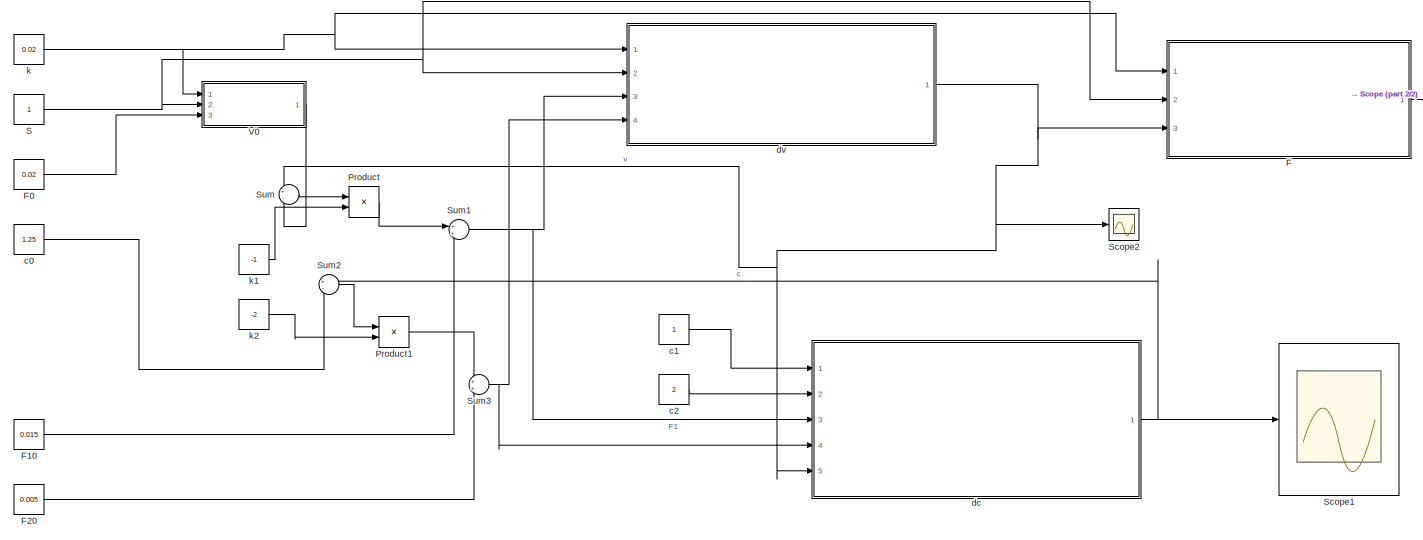
[diagram: root canvas - part 1/2, most of the canvas]
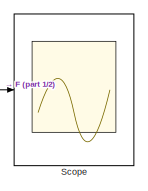
[diagram: root canvas - part 2/2, top right region]
MODEL slx_088657056ad3
KIND model
CONFIG AbsTol = auto
CONFIG EnableMultiTasking = off
CONFIG FixedStep = auto
CONFIG MaxStep = auto
CONFIG MinStep = auto
CONFIG RelTol = 1e-3
CONFIG SampleTimeConstraint = Unconstrained
CONFIG Solver = VariableStepAuto
CONFIG SolverName = VariableStepAuto
CONFIG StartTime = 0.0
CONFIG StopTime = 10.0
WORKSPACE source: mxarray member
WORKSPACE V0 = 1
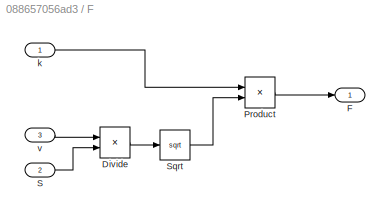
BLOCK [SubSystem] F
  Ports = [3, 1]
  RequestExecContextInheritance = off
BLOCK [Product] F/Divide
  InputSameDT = off
  Inputs = */
  OutDataTypeStr = Inherit: Inherit via internal rule
  Ports = [2, 1]
  RndMeth = Floor
  SaturateOnIntegerOverflow = off
BLOCK [Outport] F/F
  IconDisplay = Port number
BLOCK [Product] F/Product
  InputSameDT = off
  OutDataTypeStr = Inherit: Inherit via internal rule
  Ports = [2, 1]
  RndMeth = Floor
  SaturateOnIntegerOverflow = off
BLOCK [Inport] F/S
  IconDisplay = Port number
  Port = 2
BLOCK [Sqrt] F/Sqrt
BLOCK [Inport] F/k
  IconDisplay = Port number
BLOCK [Inport] F/v
  IconDisplay = Port number
  Port = 3
BLOCK [Constant] F0
  Value = 0.02
BLOCK [Constant] F10
  Value = 0.015
BLOCK [Constant] F20 
  Value = 0.005
BLOCK [Product] Product
  InputSameDT = off
  OutDataTypeStr = Inherit: Inherit via internal rule
  Ports = [2, 1]
  RndMeth = Floor
  SaturateOnIntegerOverflow = off
BLOCK [Product] Product1
  InputSameDT = off
  OutDataTypeStr = Inherit: Inherit via internal rule
  Ports = [2, 1]
  RndMeth = Floor
  SaturateOnIntegerOverflow = off
BLOCK [Constant] S
BLOCK [Scope] Scope
  Floating = off
  NumInputPorts = 1
  Ports = [1]
  ScopeSpecificationString = Simulink.scopes.TimeScopeBlockCfg('CurrentConfiguration', extmgr.ConfigurationSet(extmgr.Configuration('Core','General UI',true),extmgr.Configuration('Core','Source UI',true),extmgr.Configuration('Sources','WiredSimulink',true),extmgr.Configuration('Visuals','Time Domain',true,'SerializedDisplays',{struct('MinYLimReal','0.01916','MaxYLimReal','0.02744','YLabelReal','','MinYLimMag','0.01916','MaxYL...<+1386ch>
BLOCK [Scope] Scope1
  Floating = off
  NumInputPorts = 1
  Ports = [1]
  ScopeSpecificationString = Simulink.scopes.TimeScopeBlockCfg('CurrentConfiguration', extmgr.ConfigurationSet(extmgr.Configuration('Core','General UI',true),extmgr.Configuration('Core','Source UI',true),extmgr.Configuration('Sources','WiredSimulink',true,'DataLoggingVariableName','ScopeData1'),extmgr.Configuration('Visuals','Time Domain',true,'SerializedDisplays',{struct('MinYLimReal','-0.15823','MaxYLimReal','1.42407','YLab...<+1402ch>
BLOCK [Scope] Scope2
  Floating = off
  NumInputPorts = 1
  Ports = [1]
  ScopeSpecificationString = Simulink.scopes.TimeScopeBlockCfg('CurrentConfiguration', extmgr.ConfigurationSet(extmgr.Configuration('Core','General UI',true),extmgr.Configuration('Core','Source UI',true),extmgr.Configuration('Sources','WiredSimulink',true,'DataLoggingVariableName','ScopeData2'),extmgr.Configuration('Visuals','Time Domain',true,'SerializedDisplays',{struct('MinYLimReal','0.90213','MaxYLimReal','1.86753','YLabe...<+1358ch>
BLOCK [Sum] Sum
  IconShape = round
  InputSameDT = off
  Inputs = +-
  OutDataTypeStr = Inherit: Inherit via internal rule
  Ports = [2, 1]
  SaturateOnIntegerOverflow = off
BLOCK [Sum] Sum1
  IconShape = round
  InputSameDT = off
  OutDataTypeStr = Inherit: Inherit via internal rule
  Ports = [2, 1]
  SaturateOnIntegerOverflow = off
BLOCK [Sum] Sum2
  IconShape = round
  InputSameDT = off
  Inputs = +-
  OutDataTypeStr = Inherit: Inherit via internal rule
  Ports = [2, 1]
  SaturateOnIntegerOverflow = off
BLOCK [Sum] Sum3
  IconShape = round
  InputSameDT = off
  OutDataTypeStr = Inherit: Inherit via internal rule
  Ports = [2, 1]
  SaturateOnIntegerOverflow = off
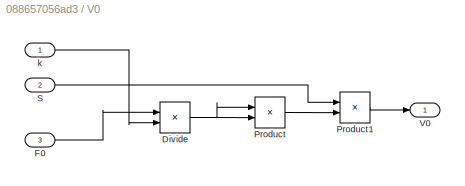
BLOCK [SubSystem] V0
  Ports = [3, 1]
  RequestExecContextInheritance = off
BLOCK [Product] V0/Divide
  InputSameDT = off
  Inputs = */
  OutDataTypeStr = Inherit: Inherit via internal rule
  Ports = [2, 1]
  RndMeth = Floor
  SaturateOnIntegerOverflow = off
BLOCK [Inport] V0/F0
  IconDisplay = Port number
  Port = 3
BLOCK [Product] V0/Product
  InputSameDT = off
  OutDataTypeStr = Inherit: Inherit via internal rule
  Ports = [2, 1]
  RndMeth = Floor
  SaturateOnIntegerOverflow = off
BLOCK [Product] V0/Product1
  InputSameDT = off
  OutDataTypeStr = Inherit: Inherit via internal rule
  Ports = [2, 1]
  RndMeth = Floor
  SaturateOnIntegerOverflow = off
BLOCK [Inport] V0/S
  IconDisplay = Port number
  Port = 2
BLOCK [Outport] V0/V0
  IconDisplay = Port number
BLOCK [Inport] V0/k
  IconDisplay = Port number
BLOCK [Constant] c0 
  Value = 1.25
BLOCK [Constant] c1
BLOCK [Constant] c2
  Value = 2
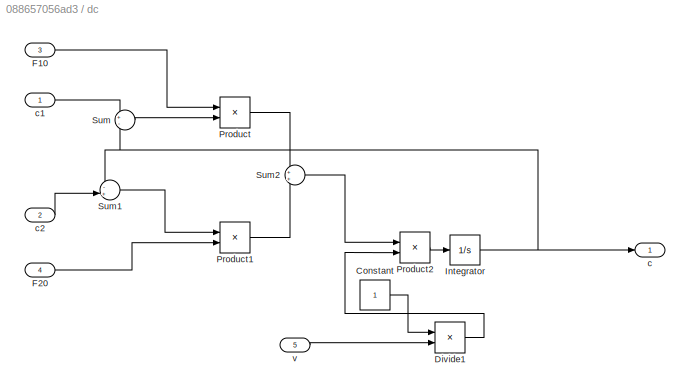
BLOCK [SubSystem] dc
  Ports = [5, 1]
  RequestExecContextInheritance = off
BLOCK [Constant] dc/Constant
BLOCK [Product] dc/Divide1
  InputSameDT = off
  Inputs = */
  OutDataTypeStr = Inherit: Inherit via internal rule
  Ports = [2, 1]
  RndMeth = Floor
  SaturateOnIntegerOverflow = off
BLOCK [Inport] dc/F10
  IconDisplay = Port number
  Port = 3
BLOCK [Inport] dc/F20
  IconDisplay = Port number
  Port = 4
BLOCK [Integrator] dc/Integrator
  Ports = [1, 1]
BLOCK [Product] dc/Product
  InputSameDT = off
  OutDataTypeStr = Inherit: Inherit via internal rule
  Ports = [2, 1]
  RndMeth = Floor
  SaturateOnIntegerOverflow = off
BLOCK [Product] dc/Product1
  InputSameDT = off
  OutDataTypeStr = Inherit: Inherit via internal rule
  Ports = [2, 1]
  RndMeth = Floor
  SaturateOnIntegerOverflow = off
BLOCK [Product] dc/Product2
  InputSameDT = off
  OutDataTypeStr = Inherit: Inherit via internal rule
  Ports = [2, 1]
  RndMeth = Floor
  SaturateOnIntegerOverflow = off
BLOCK [Sum] dc/Sum
  IconShape = round
  InputSameDT = off
  Inputs = +-
  OutDataTypeStr = Inherit: Inherit via internal rule
  Ports = [2, 1]
  SaturateOnIntegerOverflow = off
BLOCK [Sum] dc/Sum1
  IconShape = round
  InputSameDT = off
  Inputs = -+
  OutDataTypeStr = Inherit: Inherit via internal rule
  Ports = [2, 1]
  SaturateOnIntegerOverflow = off
BLOCK [Sum] dc/Sum2
  IconShape = round
  InputSameDT = off
  OutDataTypeStr = Inherit: Inherit via internal rule
  Ports = [2, 1]
  SaturateOnIntegerOverflow = off
BLOCK [Outport] dc/c
  IconDisplay = Port number
BLOCK [Inport] dc/c1
  IconDisplay = Port number
BLOCK [Inport] dc/c2
  IconDisplay = Port number
  Port = 2
BLOCK [Inport] dc/v
  IconDisplay = Port number
  Port = 5
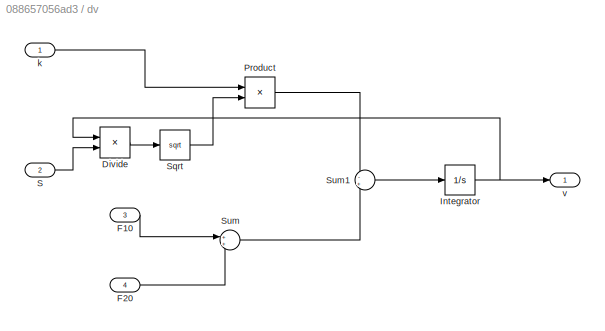
BLOCK [SubSystem] dv
  Ports = [4, 1]
  RequestExecContextInheritance = off
BLOCK [Product] dv/Divide
  InputSameDT = off
  Inputs = */
  OutDataTypeStr = Inherit: Inherit via internal rule
  Ports = [2, 1]
  RndMeth = Floor
  SaturateOnIntegerOverflow = off
BLOCK [Inport] dv/F10
  IconDisplay = Port number
  Port = 3
BLOCK [Inport] dv/F20
  IconDisplay = Port number
  Port = 4
BLOCK [Integrator] dv/Integrator
  InitialCondition = 1.25
  Ports = [1, 1]
BLOCK [Product] dv/Product
  InputSameDT = off
  OutDataTypeStr = Inherit: Inherit via internal rule
  Ports = [2, 1]
  RndMeth = Floor
  SaturateOnIntegerOverflow = off
BLOCK [Inport] dv/S
  IconDisplay = Port number
  Port = 2
BLOCK [Sqrt] dv/Sqrt
BLOCK [Sum] dv/Sum
  IconShape = round
  InputSameDT = off
  OutDataTypeStr = Inherit: Inherit via internal rule
  Ports = [2, 1]
  SaturateOnIntegerOverflow = off
BLOCK [Sum] dv/Sum1
  IconShape = round
  InputSameDT = off
  Inputs = -+
  OutDataTypeStr = Inherit: Inherit via internal rule
  Ports = [2, 1]
  SaturateOnIntegerOverflow = off
BLOCK [Inport] dv/k
  IconDisplay = Port number
BLOCK [Outport] dv/v
  IconDisplay = Port number
BLOCK [Constant] k
  Value = 0.02
BLOCK [Constant] k1
  Value = -1
BLOCK [Constant] k2
  Value = -2
LINE F/Divide:1 -> F/Sqrt:1
LINE F/Product:1 -> F/F:1
LINE F/S:1 -> F/Divide:2
LINE F/Sqrt:1 -> F/Product:2
LINE F/k:1 -> F/Product:1
LINE F/v:1 -> F/Divide:1
LINE F0:1 -> V0:3
LINE F10:1 -> Sum1:2
LINE F20 :1 -> Sum3:2
LINE F:1 -> Scope:1
LINE Product1:1 -> Sum3:1
LINE Product:1 -> Sum1:1
NET S:1 -> F:2, V0:2, dv:2
NET Sum1:1 -> dc:3, dv:3
LINE Sum2:1 -> Product1:1
NET Sum3:1 -> dc:4, dv:4
LINE Sum:1 -> Product:1
NET V0/Divide:1 -> V0/Product:1, V0/Product:2
LINE V0/F0:1 -> V0/Divide:1
LINE V0/Product1:1 -> V0/V0:1
LINE V0/Product:1 -> V0/Product1:2
LINE V0/S:1 -> V0/Product1:1
LINE V0/k:1 -> V0/Divide:2
LINE V0:1 -> Sum:2
LINE c0 :1 -> Sum2:2
LINE c1:1 -> dc:1
LINE c2:1 -> dc:2
LINE dc/Constant:1 -> dc/Divide1:1
LINE dc/Divide1:1 -> dc/Product2:2
LINE dc/F10:1 -> dc/Product:1
LINE dc/F20:1 -> dc/Product1:2
NET dc/Integrator:1 -> dc/Sum1:1, dc/Sum:2, dc/c:1
LINE dc/Product1:1 -> dc/Sum2:2
LINE dc/Product2:1 -> dc/Integrator:1
LINE dc/Product:1 -> dc/Sum2:1
LINE dc/Sum1:1 -> dc/Product1:1
LINE dc/Sum2:1 -> dc/Product2:1
LINE dc/Sum:1 -> dc/Product:2
LINE dc/c1:1 -> dc/Sum:1
LINE dc/c2:1 -> dc/Sum1:2
LINE dc/v:1 -> dc/Divide1:2
NET dc:1 -> Scope1:1, Sum2:1
LINE dv/Divide:1 -> dv/Sqrt:1
LINE dv/F10:1 -> dv/Sum:1
LINE dv/F20:1 -> dv/Sum:2
NET dv/Integrator:1 -> dv/Divide:1, dv/v:1
LINE dv/Product:1 -> dv/Sum1:1
LINE dv/S:1 -> dv/Divide:2
LINE dv/Sqrt:1 -> dv/Product:2
LINE dv/Sum1:1 -> dv/Integrator:1
LINE dv/Sum:1 -> dv/Sum1:2
LINE dv/k:1 -> dv/Product:1
NET dv:1 -> F:3, Scope2:1, Sum:1, dc:5
LINE k1:1 -> Product:2
LINE k2:1 -> Product1:2
NET k:1 -> F:1, V0:1, dv:1
note: NET lines group one-source signal fan-out (src -> all destinations, sorted); 1:1 wires keep LINE
